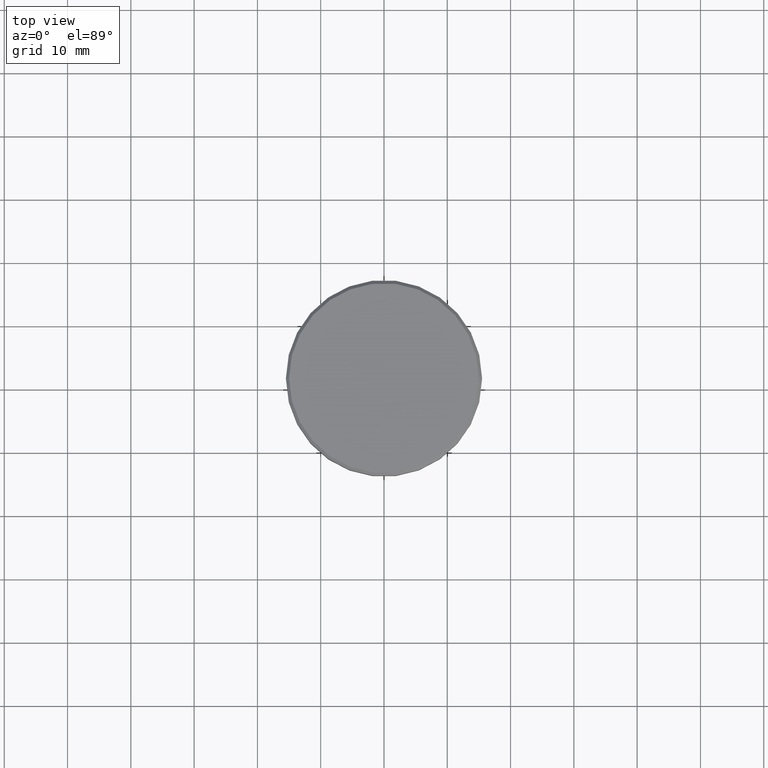
[diagram: clean part render]
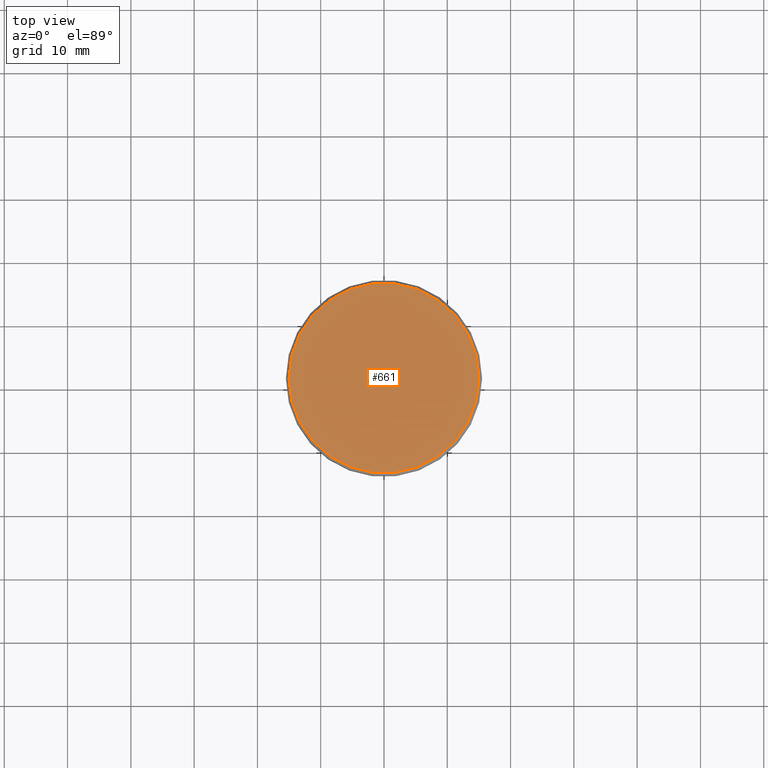
[diagram: same view with one face highlighted and labeled with its STEP entity id]
A machine part, top view. The second image highlights one B-rep face of the part: STEP entity #661.
In plain terms, the highlighted planar face has unit normal (0, -0, 1).
Its self-contained STEP definition (entity closure, byte-faithful):
#28 = PLANE ( 'NONE',  #222 ) ;
#46 = VERTEX_POINT ( 'NONE', #167 ) ;
#71 = CARTESIAN_POINT ( 'NONE',  ( 0.000000000000000000, 0.000000000000000000, 0.000000000000000000 ) ) ;
#112 = AXIS2_PLACEMENT_3D ( 'NONE', #609, #671, #510 ) ;
#157 = CARTESIAN_POINT ( 'NONE',  ( 15.00000000000002665, 1.867586368699715348E-15, 0.000000000000000000 ) ) ;
#167 = CARTESIAN_POINT ( 'NONE',  ( -15.00000000000002665, 0.000000000000000000, 0.000000000000000000 ) ) ;
#198 = EDGE_LOOP ( 'NONE', ( #673, #513 ) ) ;
#211 = DIRECTION ( 'NONE',  ( 0.000000000000000000, -0.000000000000000000, 1.000000000000000000 ) ) ;
#222 = AXIS2_PLACEMENT_3D ( 'NONE', #384, #211, #694 ) ;
#384 = CARTESIAN_POINT ( 'NONE',  ( 0.000000000000000000, 0.000000000000000000, 0.000000000000000000 ) ) ;
#492 = VERTEX_POINT ( 'NONE', #157 ) ;
#510 = DIRECTION ( 'NONE',  ( 1.000000000000000000, 0.000000000000000000, 0.000000000000000000 ) ) ;
#511 = CIRCLE ( 'NONE', #112, 15.00000000000002665 ) ;
#513 = ORIENTED_EDGE ( 'NONE', *, *, #1082, .T. ) ;
#554 = EDGE_CURVE ( 'NONE', #46, #492, #703, .T. ) ;
#609 = CARTESIAN_POINT ( 'NONE',  ( 0.000000000000000000, 0.000000000000000000, 0.000000000000000000 ) ) ;
#661 = ADVANCED_FACE ( 'NONE', ( #835 ), #28, .T. ) ;
#671 = DIRECTION ( 'NONE',  ( -0.000000000000000000, -0.000000000000000000, 1.000000000000000000 ) ) ;
#673 = ORIENTED_EDGE ( 'NONE', *, *, #554, .T. ) ;
#694 = DIRECTION ( 'NONE',  ( 1.000000000000000000, 0.000000000000000000, 0.000000000000000000 ) ) ;
#703 = CIRCLE ( 'NONE', #871, 15.00000000000002665 ) ;
#706 = DIRECTION ( 'NONE',  ( -0.000000000000000000, -0.000000000000000000, 1.000000000000000000 ) ) ;
#805 = DIRECTION ( 'NONE',  ( 1.000000000000000000, 0.000000000000000000, 0.000000000000000000 ) ) ;
#835 = FACE_OUTER_BOUND ( 'NONE', #198, .T. ) ;
#871 = AXIS2_PLACEMENT_3D ( 'NONE', #71, #706, #805 ) ;
#1082 = EDGE_CURVE ( 'NONE', #492, #46, #511, .T. ) ;